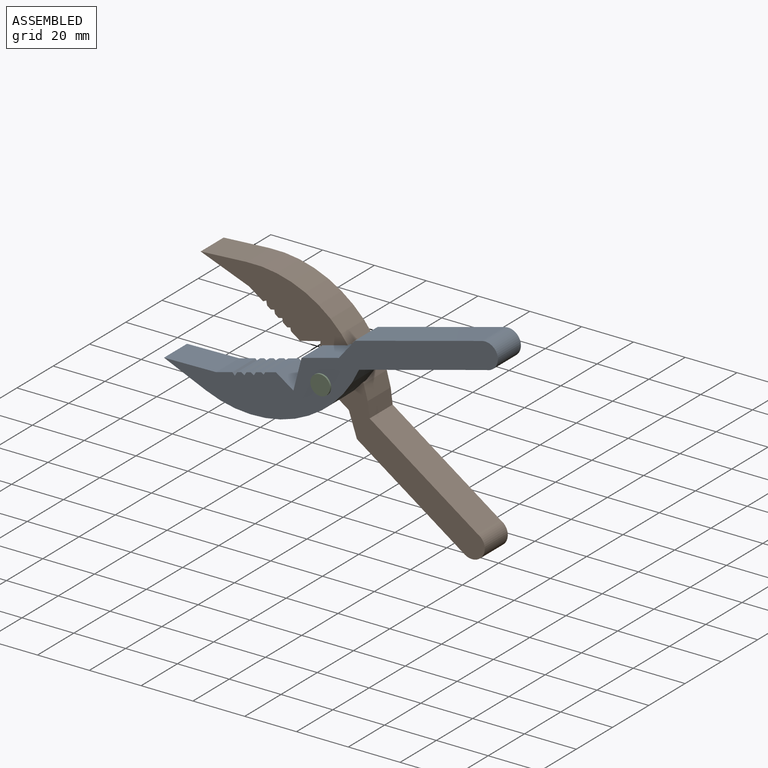
[diagram: assembled view]
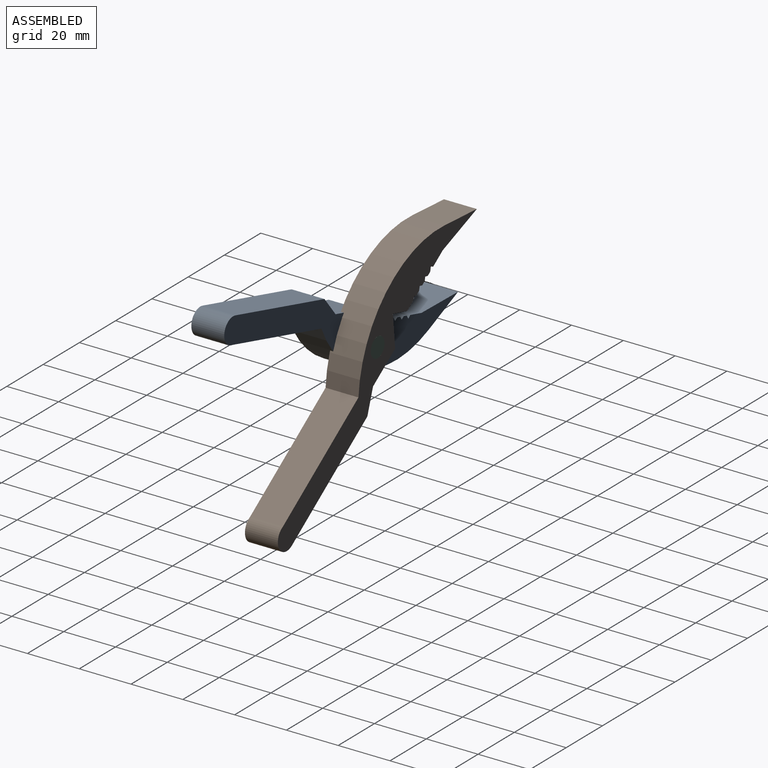
[diagram: assembled view, second angle]
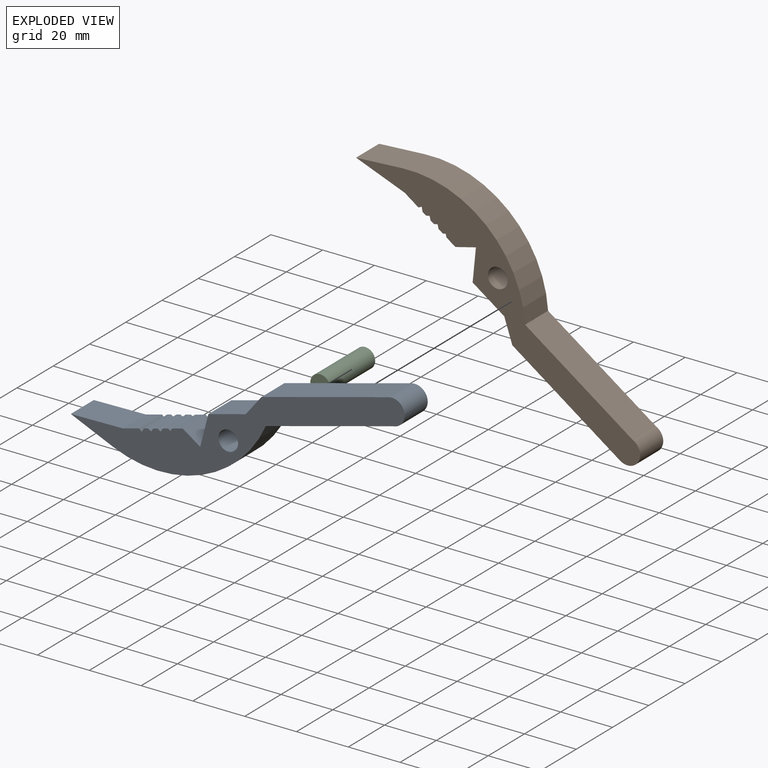
[diagram: exploded view]
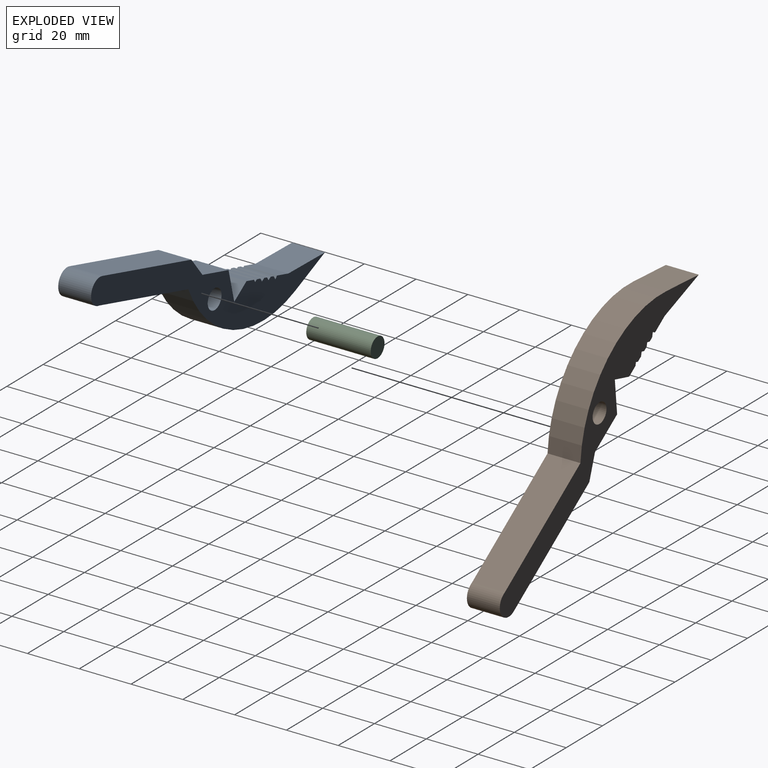
[diagram: exploded view, second angle]
ASSEMBLY  parts=3 mates=2
PART A: 26 faces, bbox 133.5x12.7x26.6 mm
  f0: plane 12.7x2.05mm, normal (0,0,-1), area 26mm2, adj f15,f16,f18,f23
  f1: plane 12.7x1.65mm, normal (0,0,-1), area 20.9mm2, adj f15,f16,f22,f24
  f2: plane 12.7x1.65mm, normal (0,0,-1), area 20.9mm2, adj f15,f16,f20,f21
  f3: plane 12.7x4.24mm, normal (0,0,-1), area 53.8mm2, adj f11,f15,f16,f17
  f4: plane 50.8x12.7mm, normal (0,0,-1), area 645.2mm2, adj f5,f14,f15,f16
  f5: cylinder r=4.93mm len=12.7mm, axis (0,1,0), area 207.7mm2, adj f4,f6,f15,f16
  f6: plane 50.8x12.7mm, normal (0,0,1), area 645.2mm2, adj f5,f7,f15,f16
  f7: cylinder r=44.92mm len=62.98mm, axis (0,1,0), area 893.4mm2, adj f6,f8,f15,f16
  f8: plane 13.9x12.7mm, normal (-0.62,0,0.78), area 225.4mm2, adj f7,f9,f15,f16
  f9: plane 19.52x12.7mm, normal (0.24,0,-0.97), area 255.5mm2, adj f8,f10,f15,f16
  f10: plane 12.7x6.5mm, normal (0,0,-1), area 82.5mm2, adj f9,f15,f16,f19
  f11: plane 12.7x6.19mm, normal (0.76,0,-0.65), area 103.8mm2, adj f3,f12,f15,f16
  f12: plane 12.7x11.04mm, normal (-0.87,0,-0.49), area 160.8mm2, adj f11,f13,f15,f16
  f13: plane 14.91x12.7mm, normal (0,0,-1), area 189.3mm2, adj f12,f14,f15,f16
  f14: plane 12.7x7.88mm, normal (-0.59,0,-0.8), area 124.3mm2, adj f4,f13,f15,f16
  f15: plane 133.47x26.6mm, normal (0,-1,0), area 1392.6mm2, adj f0,f1,f2,f3,f4,f5,f6,f7
  f16: plane 133.47x26.6mm, normal (0,1,0), area 1392.6mm2, adj f0,f1,f2,f3,f4,f5,f6,f7
  f17: plane 12.7x0.9mm, normal (-0.68,0,-0.73), area 15.7mm2, adj f3,f15,f16,f18
  f18: plane 12.7x0.84mm, normal (0.73,0,-0.68), area 14.7mm2, adj f0,f15,f16,f17
  f19: plane 12.7x1.2mm, normal (0.87,0,-0.49), area 17.5mm2, adj f10,f15,f16,f20
  f20: plane 12.7x1.28mm, normal (-0.68,0,-0.73), area 22.2mm2, adj f2,f15,f16,f19
  f21: plane 12.7x1.03mm, normal (0.73,0,-0.68), area 17.9mm2, adj f2,f15,f16,f22
  f22: plane 12.7x1.1mm, normal (-0.68,0,-0.73), area 19.1mm2, adj f1,f15,f16,f21
  f23: plane 12.7x1.13mm, normal (-0.68,0,-0.73), area 19.7mm2, adj f0,f15,f16,f24
  f24: plane 12.7x1.06mm, normal (0.73,0,-0.68), area 18.5mm2, adj f1,f15,f16,f23
  f25: cylinder r=3.81mm len=12.7mm, axis (0,-1,0), area 304mm2, adj f15,f16
PART B: same geometry as A
PART C: 3 faces, bbox 7.6x24.9x7.6 mm
  f0: cylinder r=3.81mm len=24.89mm, axis (0,1,0), area 595.9mm2, adj f1,f2
  f1: plane 7.62x7.62mm, normal (0,-1,0), area 45.6mm2, adj f0
  f2: plane 7.62x7.62mm, normal (0,1,0), area 45.6mm2, adj f0
PLACE A rot(axis=(0.99,0,0.13),180deg) t=(73.08,1.94,35.3)mm
PLACE B rot(axis=(0,1,0),35deg) t=(66.49,26.16,-1.9)mm
PLACE C rot(axis=(0,-1,0),55deg) t=(64.23,26.16,17.68)mm
MATE cylindrical C.f0 <-> B.f25  axis (0,1,0) through (64.23,26.16,17.68)mm
MATE cylindrical C.f0 <-> A.f25  axis (0,-1,0) through (64.23,1.26,17.68)mm
